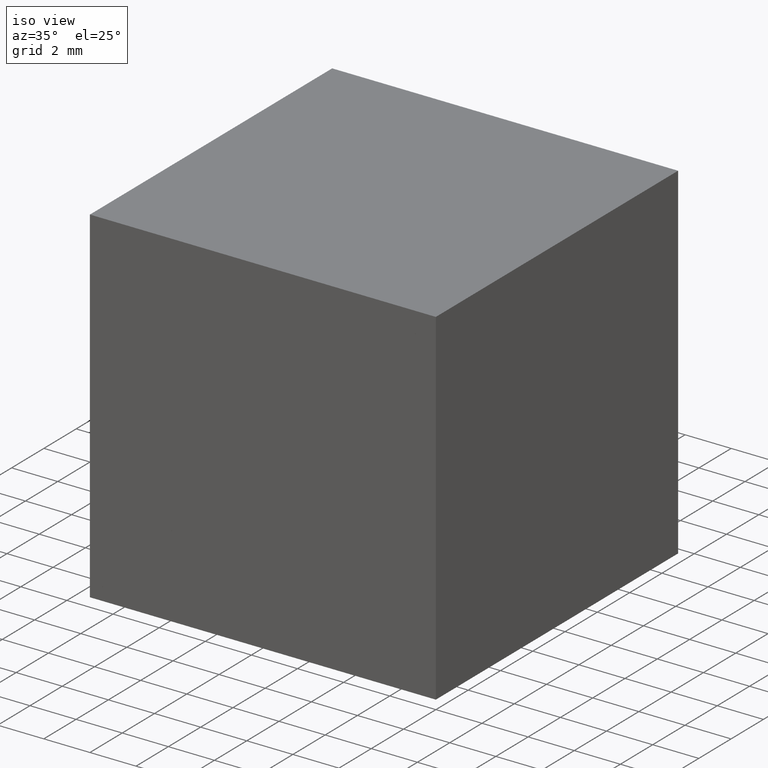
[diagram: clean part render]
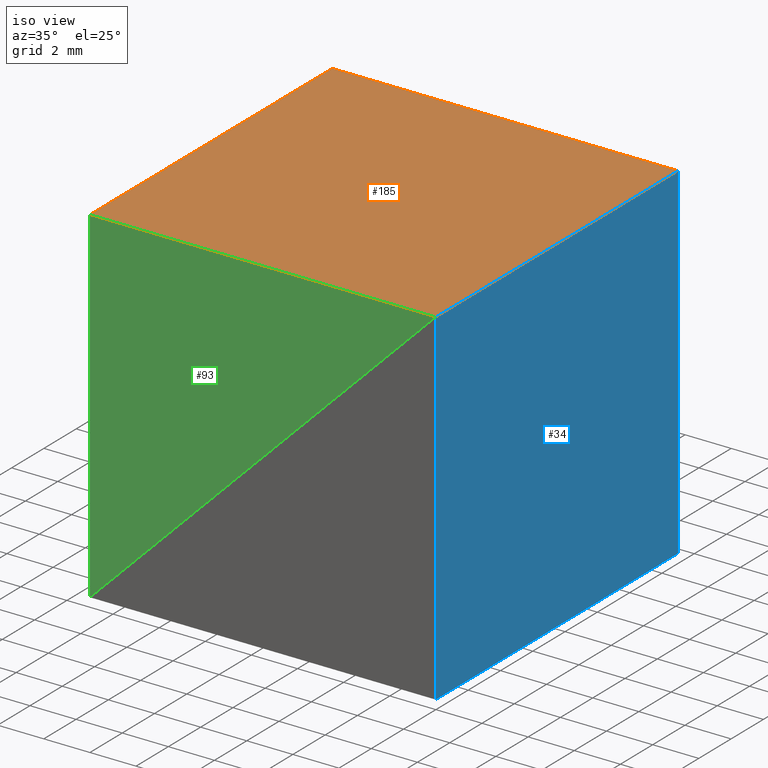
[diagram: same view with three faces highlighted in distinct colors, each labeled with its STEP entity id]
A machine part, iso view with three faces highlighted in distinct colors.
Their STEP definitions:

[orange] entity #185 — the highlighted planar face has unit normal (-0, 0, 1).
#3 = CARTESIAN_POINT ( 'NONE',  ( -15.00000000000000000, 15.00000000000000000, 0.0000000000000000000 ) ) ;
#17 = ORIENTED_EDGE ( 'NONE', *, *, #245, .T. ) ;
#22 = LINE ( 'NONE', #3, #135 ) ;
#27 = CARTESIAN_POINT ( 'NONE',  ( 0.0000000000000000000, 15.00000000000000000, 0.0000000000000000000 ) ) ;
#45 = DIRECTION ( 'NONE',  ( 0.0000000000000000000, -1.000000000000000000, 0.0000000000000000000 ) ) ;
#48 = DIRECTION ( 'NONE',  ( -0.0000000000000000000, 0.0000000000000000000, 1.000000000000000000 ) ) ;
#53 = PLANE ( 'NONE',  #182 ) ;
#68 = VECTOR ( 'NONE', #236, 1000.000000000000000 ) ;
#76 = ORIENTED_EDGE ( 'NONE', *, *, #211, .T. ) ;
#85 = DIRECTION ( 'NONE',  ( 1.000000000000000000, 0.0000000000000000000, 0.0000000000000000000 ) ) ;
#100 = CARTESIAN_POINT ( 'NONE',  ( 0.0000000000000000000, 0.0000000000000000000, 0.0000000000000000000 ) ) ;
#106 = ORIENTED_EDGE ( 'NONE', *, *, #240, .F. ) ;
#109 = VERTEX_POINT ( 'NONE', #100 ) ;
#120 = CARTESIAN_POINT ( 'NONE',  ( -15.00000000000000000, 15.00000000000000000, 0.0000000000000000000 ) ) ;
#125 = FACE_OUTER_BOUND ( 'NONE', #284, .T. ) ;
#129 = VECTOR ( 'NONE', #45, 1000.000000000000000 ) ;
#135 = VECTOR ( 'NONE', #208, 1000.000000000000000 ) ;
#136 = VERTEX_POINT ( 'NONE', #246 ) ;
#171 = LINE ( 'NONE', #120, #68 ) ;
#179 = VERTEX_POINT ( 'NONE', #244 ) ;
#181 = VECTOR ( 'NONE', #262, 1000.000000000000000 ) ;
#182 = AXIS2_PLACEMENT_3D ( 'NONE', #189, #48, #85 ) ;
#185 = ADVANCED_FACE ( 'NONE', ( #125 ), #53, .T. ) ;
#189 = CARTESIAN_POINT ( 'NONE',  ( -15.00000000000000000, 15.00000000000000000, 0.0000000000000000000 ) ) ;
#208 = DIRECTION ( 'NONE',  ( -1.000000000000000000, -0.0000000000000000000, -0.0000000000000000000 ) ) ;
#211 = EDGE_CURVE ( 'NONE', #179, #227, #171, .T. ) ;
#214 = CARTESIAN_POINT ( 'NONE',  ( -15.00000000000000000, 0.0000000000000000000, 0.0000000000000000000 ) ) ;
#227 = VERTEX_POINT ( 'NONE', #214 ) ;
#234 = LINE ( 'NONE', #279, #181 ) ;
#236 = DIRECTION ( 'NONE',  ( 0.0000000000000000000, -1.000000000000000000, 0.0000000000000000000 ) ) ;
#240 = EDGE_CURVE ( 'NONE', #109, #227, #234, .T. ) ;
#241 = ORIENTED_EDGE ( 'NONE', *, *, #276, .F. ) ;
#244 = CARTESIAN_POINT ( 'NONE',  ( -15.00000000000000000, 15.00000000000000000, 0.0000000000000000000 ) ) ;
#245 = EDGE_CURVE ( 'NONE', #136, #179, #22, .T. ) ;
#246 = CARTESIAN_POINT ( 'NONE',  ( 0.0000000000000000000, 15.00000000000000000, 0.0000000000000000000 ) ) ;
#254 = LINE ( 'NONE', #27, #129 ) ;
#262 = DIRECTION ( 'NONE',  ( -1.000000000000000000, -0.0000000000000000000, -0.0000000000000000000 ) ) ;
#276 = EDGE_CURVE ( 'NONE', #136, #109, #254, .T. ) ;
#279 = CARTESIAN_POINT ( 'NONE',  ( -15.00000000000000000, 0.0000000000000000000, 0.0000000000000000000 ) ) ;
#284 = EDGE_LOOP ( 'NONE', ( #106, #241, #17, #76 ) ) ;

[blue] entity #34 — the highlighted planar face has unit normal (-1, 0, 0).
#1 = ORIENTED_EDGE ( 'NONE', *, *, #194, .T. ) ;
#9 = VECTOR ( 'NONE', #281, 1000.000000000000000 ) ;
#16 = DIRECTION ( 'NONE',  ( 0.0000000000000000000, 0.0000000000000000000, 1.000000000000000000 ) ) ;
#18 = AXIS2_PLACEMENT_3D ( 'NONE', #197, #168, #16 ) ;
#32 = ORIENTED_EDGE ( 'NONE', *, *, #119, .F. ) ;
#34 = ADVANCED_FACE ( 'NONE', ( #140 ), #196, .F. ) ;
#36 = LINE ( 'NONE', #192, #158 ) ;
#39 = EDGE_LOOP ( 'NONE', ( #57, #292, #32, #1 ) ) ;
#43 = VERTEX_POINT ( 'NONE', #59 ) ;
#57 = ORIENTED_EDGE ( 'NONE', *, *, #133, .T. ) ;
#59 = CARTESIAN_POINT ( 'NONE',  ( 0.0000000000000000000, 15.00000000000000000, -15.00000000000000000 ) ) ;
#60 = VERTEX_POINT ( 'NONE', #289 ) ;
#61 = CARTESIAN_POINT ( 'NONE',  ( 0.0000000000000000000, 15.00000000000000000, 0.0000000000000000000 ) ) ;
#70 = VECTOR ( 'NONE', #126, 1000.000000000000000 ) ;
#78 = VECTOR ( 'NONE', #191, 1000.000000000000000 ) ;
#99 = CARTESIAN_POINT ( 'NONE',  ( 0.0000000000000000000, 15.00000000000000000, -15.00000000000000000 ) ) ;
#119 = EDGE_CURVE ( 'NONE', #207, #43, #36, .T. ) ;
#126 = DIRECTION ( 'NONE',  ( 0.0000000000000000000, 0.0000000000000000000, -1.000000000000000000 ) ) ;
#133 = EDGE_CURVE ( 'NONE', #163, #60, #200, .T. ) ;
#140 = FACE_OUTER_BOUND ( 'NONE', #39, .T. ) ;
#152 = EDGE_CURVE ( 'NONE', #43, #60, #256, .T. ) ;
#158 = VECTOR ( 'NONE', #288, 1000.000000000000000 ) ;
#160 = CARTESIAN_POINT ( 'NONE',  ( 0.0000000000000000000, 15.00000000000000000, 0.0000000000000000000 ) ) ;
#163 = VERTEX_POINT ( 'NONE', #218 ) ;
#168 = DIRECTION ( 'NONE',  ( -1.000000000000000000, 0.0000000000000000000, 0.0000000000000000000 ) ) ;
#191 = DIRECTION ( 'NONE',  ( -0.0000000000000000000, -1.000000000000000000, -0.0000000000000000000 ) ) ;
#192 = CARTESIAN_POINT ( 'NONE',  ( 0.0000000000000000000, 15.00000000000000000, 0.0000000000000000000 ) ) ;
#194 = EDGE_CURVE ( 'NONE', #207, #163, #255, .T. ) ;
#196 = PLANE ( 'NONE',  #18 ) ;
#197 = CARTESIAN_POINT ( 'NONE',  ( 0.0000000000000000000, 15.00000000000000000, 0.0000000000000000000 ) ) ;
#200 = LINE ( 'NONE', #269, #70 ) ;
#207 = VERTEX_POINT ( 'NONE', #160 ) ;
#218 = CARTESIAN_POINT ( 'NONE',  ( 0.0000000000000000000, 0.0000000000000000000, 0.0000000000000000000 ) ) ;
#255 = LINE ( 'NONE', #61, #9 ) ;
#256 = LINE ( 'NONE', #99, #78 ) ;
#269 = CARTESIAN_POINT ( 'NONE',  ( 0.0000000000000000000, 0.0000000000000000000, 0.0000000000000000000 ) ) ;
#281 = DIRECTION ( 'NONE',  ( -0.0000000000000000000, -1.000000000000000000, -0.0000000000000000000 ) ) ;
#288 = DIRECTION ( 'NONE',  ( 0.0000000000000000000, 0.0000000000000000000, -1.000000000000000000 ) ) ;
#289 = CARTESIAN_POINT ( 'NONE',  ( 0.0000000000000000000, 0.0000000000000000000, -15.00000000000000000 ) ) ;
#292 = ORIENTED_EDGE ( 'NONE', *, *, #152, .F. ) ;

[green] entity #93 — the highlighted planar face has unit normal (0, 1, 0).
#5 = EDGE_CURVE ( 'NONE', #227, #223, #267, .T. ) ;
#7 = ORIENTED_EDGE ( 'NONE', *, *, #240, .T. ) ;
#12 = DIRECTION ( 'NONE',  ( 0.7071067811865476800, 0.0000000000000000000, 0.7071067811865474600 ) ) ;
#15 = DIRECTION ( 'NONE',  ( 0.0000000000000000000, -0.0000000000000000000, 1.000000000000000000 ) ) ;
#19 = VECTOR ( 'NONE', #82, 1000.000000000000000 ) ;
#37 = CARTESIAN_POINT ( 'NONE',  ( 0.0000000000000000000, 0.0000000000000000000, 0.0000000000000000000 ) ) ;
#77 = AXIS2_PLACEMENT_3D ( 'NONE', #193, #250, #15 ) ;
#82 = DIRECTION ( 'NONE',  ( -0.0000000000000000000, -0.0000000000000000000, -1.000000000000000000 ) ) ;
#93 = ADVANCED_FACE ( 'NONE', ( #210 ), #167, .F. ) ;
#95 = VECTOR ( 'NONE', #12, 1000.000000000000000 ) ;
#100 = CARTESIAN_POINT ( 'NONE',  ( 0.0000000000000000000, 0.0000000000000000000, 0.0000000000000000000 ) ) ;
#109 = VERTEX_POINT ( 'NONE', #100 ) ;
#116 = ORIENTED_EDGE ( 'NONE', *, *, #5, .T. ) ;
#159 = EDGE_CURVE ( 'NONE', #223, #109, #224, .T. ) ;
#162 = ORIENTED_EDGE ( 'NONE', *, *, #159, .T. ) ;
#167 = PLANE ( 'NONE',  #77 ) ;
#181 = VECTOR ( 'NONE', #262, 1000.000000000000000 ) ;
#193 = CARTESIAN_POINT ( 'NONE',  ( 0.0000000000000000000, 0.0000000000000000000, 0.0000000000000000000 ) ) ;
#210 = FACE_OUTER_BOUND ( 'NONE', #280, .T. ) ;
#214 = CARTESIAN_POINT ( 'NONE',  ( -15.00000000000000000, 0.0000000000000000000, 0.0000000000000000000 ) ) ;
#223 = VERTEX_POINT ( 'NONE', #263 ) ;
#224 = LINE ( 'NONE', #37, #95 ) ;
#227 = VERTEX_POINT ( 'NONE', #214 ) ;
#234 = LINE ( 'NONE', #279, #181 ) ;
#240 = EDGE_CURVE ( 'NONE', #109, #227, #234, .T. ) ;
#250 = DIRECTION ( 'NONE',  ( 0.0000000000000000000, 1.000000000000000000, 0.0000000000000000000 ) ) ;
#252 = CARTESIAN_POINT ( 'NONE',  ( -15.00000000000000000, -0.0000000000000000000, -14.99999999999999600 ) ) ;
#262 = DIRECTION ( 'NONE',  ( -1.000000000000000000, -0.0000000000000000000, -0.0000000000000000000 ) ) ;
#263 = CARTESIAN_POINT ( 'NONE',  ( -15.00000000000000000, -0.0000000000000000000, -14.99999999999999600 ) ) ;
#267 = LINE ( 'NONE', #252, #19 ) ;
#279 = CARTESIAN_POINT ( 'NONE',  ( -15.00000000000000000, 0.0000000000000000000, 0.0000000000000000000 ) ) ;
#280 = EDGE_LOOP ( 'NONE', ( #162, #7, #116 ) ) ;